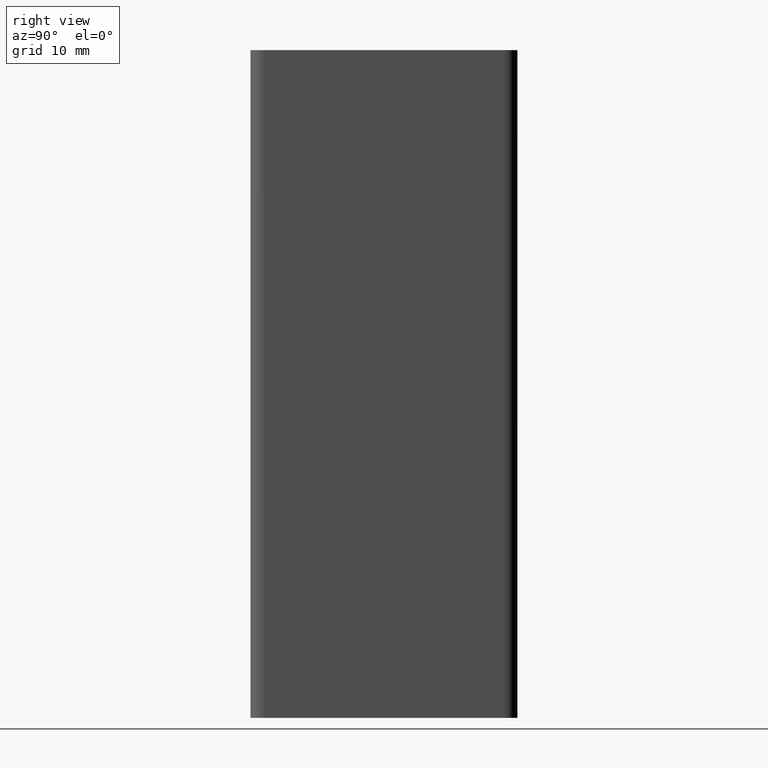
[diagram: clean part render]
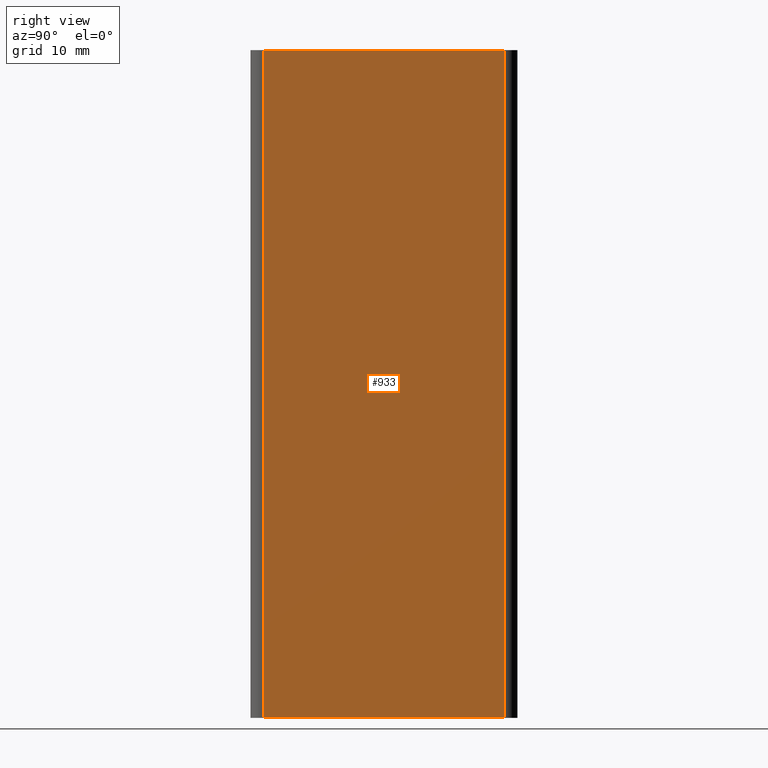
[diagram: same view with one face highlighted and labeled with its STEP entity id]
A machine part, right view. The second image highlights one B-rep face of the part: STEP entity #933.
In plain terms, the highlighted planar face has unit normal (1, -0, 0).
Its self-contained STEP definition (entity closure, byte-faithful):
#96=LINE('',#1536,#188);
#99=LINE('',#1548,#191);
#105=LINE('',#1565,#197);
#106=LINE('',#1568,#198);
#188=VECTOR('',#1257,36.);
#191=VECTOR('',#1270,100.);
#197=VECTOR('',#1290,100.);
#198=VECTOR('',#1295,36.);
#223=PLANE('',#1024);
#277=FACE_OUTER_BOUND('',#328,.T.);
#328=EDGE_LOOP('',(#818,#819,#820,#821));
#455=VERTEX_POINT('',#1533);
#456=VERTEX_POINT('',#1535);
#460=VERTEX_POINT('',#1546);
#464=VERTEX_POINT('',#1564);
#581=EDGE_CURVE('',#456,#455,#96,.T.);
#588=EDGE_CURVE('',#460,#455,#99,.T.);
#596=EDGE_CURVE('',#464,#456,#105,.T.);
#598=EDGE_CURVE('',#464,#460,#106,.T.);
#818=ORIENTED_EDGE('',*,*,#581,.T.);
#819=ORIENTED_EDGE('',*,*,#588,.F.);
#820=ORIENTED_EDGE('',*,*,#598,.F.);
#821=ORIENTED_EDGE('',*,*,#596,.T.);
#933=ADVANCED_FACE('',(#277),#223,.T.);
#1024=AXIS2_PLACEMENT_3D('',#1567,#1293,#1294);
#1257=DIRECTION('',(-4.31753398465339E-16,-1.,0.));
#1270=DIRECTION('',(0.,0.,1.));
#1290=DIRECTION('',(0.,0.,1.));
#1293=DIRECTION('center_axis',(1.,-4.31753398465339E-16,0.));
#1294=DIRECTION('ref_axis',(3.5527136788005E-16,1.,0.));
#1295=DIRECTION('',(-4.31753398465339E-16,-1.,0.));
#1533=CARTESIAN_POINT('',(10.,-18.,100.));
#1535=CARTESIAN_POINT('',(10.,18.,100.));
#1536=CARTESIAN_POINT('',(10.,-9.00000000000001,100.));
#1546=CARTESIAN_POINT('',(10.,-18.,0.));
#1548=CARTESIAN_POINT('',(10.,-18.,0.));
#1564=CARTESIAN_POINT('',(10.,18.,0.));
#1565=CARTESIAN_POINT('',(10.,18.,0.));
#1567=CARTESIAN_POINT('Origin',(10.,-18.,0.));
#1568=CARTESIAN_POINT('',(10.,-9.00000000000001,0.));